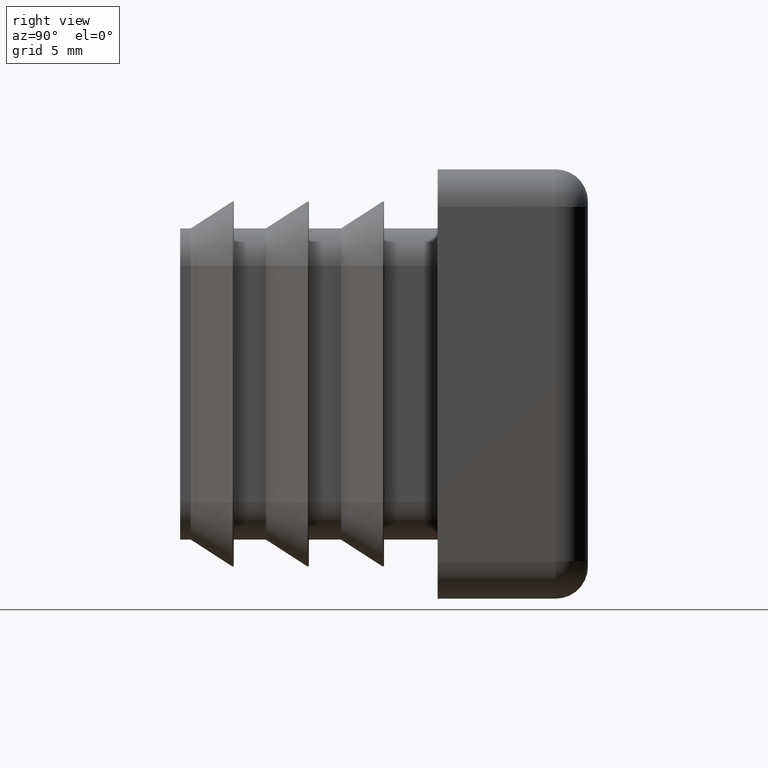
[diagram: clean part render]
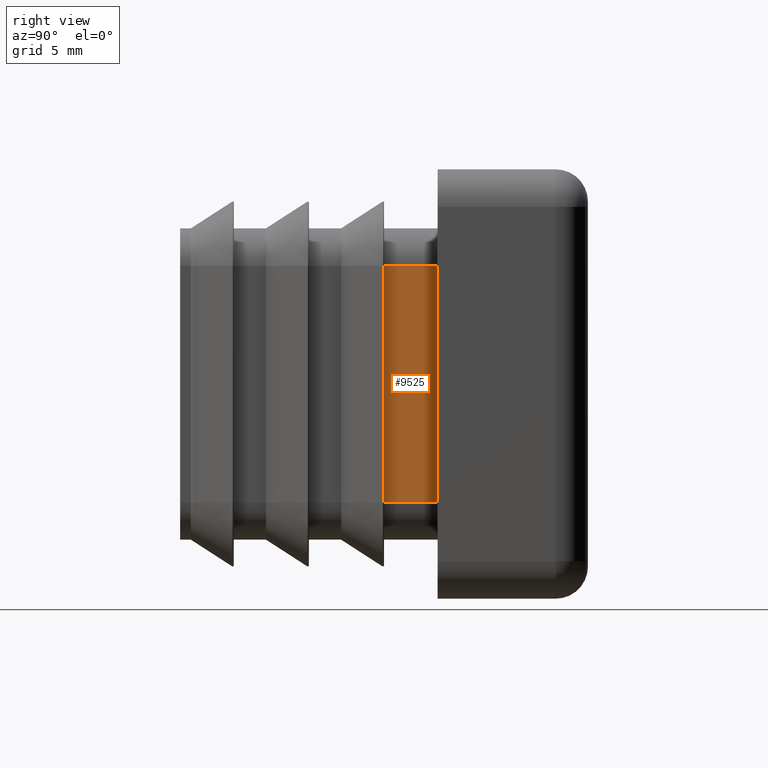
[diagram: same view with one face highlighted and labeled with its STEP entity id]
A machine part, right view. The second image highlights one B-rep face of the part: STEP entity #9525.
In plain terms, the highlighted planar face has unit normal (-1, 0, -0).
Its self-contained STEP definition (entity closure, byte-faithful):
#239 = CARTESIAN_POINT ( 'NONE',  ( 7.249999999999999112, 0.000000000000000000, 7.249999999999994671 ) ) ;
#330 = AXIS2_PLACEMENT_3D ( 'NONE', #5306, #16803, #18375 ) ;
#1162 = CARTESIAN_POINT ( 'NONE',  ( 7.250000000000002665, -2.500000000000000444, 0.000000000000000000 ) ) ;
#2506 = EDGE_CURVE ( 'NONE', #3935, #8171, #9545, .T. ) ;
#3090 = CARTESIAN_POINT ( 'NONE',  ( 7.250000000000000000, -2.500000000000000444, 5.499999999999995559 ) ) ;
#3278 = CARTESIAN_POINT ( 'NONE',  ( 7.250000000000005329, -12.00000000000000000, -5.500000000000003553 ) ) ;
#3858 = CARTESIAN_POINT ( 'NONE',  ( 7.250000000000005329, 0.000000000000000000, -5.500000000000003553 ) ) ;
#3917 = EDGE_LOOP ( 'NONE', ( #14667, #14172, #9308, #5656, #10907 ) ) ;
#3935 = VERTEX_POINT ( 'NONE', #1162 ) ;
#3979 = DIRECTION ( 'NONE',  ( -5.519574696289841831E-16, -0.000000000000000000, 1.000000000000000000 ) ) ;
#4900 = CARTESIAN_POINT ( 'NONE',  ( 7.250000000000000000, 0.000000000000000000, 5.499999999999995559 ) ) ;
#5306 = CARTESIAN_POINT ( 'NONE',  ( 7.249999999999999112, -12.00000000000000000, 7.249999999999994671 ) ) ;
#5343 = VERTEX_POINT ( 'NONE', #3858 ) ;
#5656 = ORIENTED_EDGE ( 'NONE', *, *, #17046, .T. ) ;
#5813 = VERTEX_POINT ( 'NONE', #11626 ) ;
#7058 = DIRECTION ( 'NONE',  ( -5.519574696289841831E-16, -0.000000000000000000, 1.000000000000000000 ) ) ;
#8171 = VERTEX_POINT ( 'NONE', #3090 ) ;
#9308 = ORIENTED_EDGE ( 'NONE', *, *, #18530, .T. ) ;
#9525 = ADVANCED_FACE ( 'NONE', ( #13205 ), #19360, .F. ) ;
#9545 = LINE ( 'NONE', #19670, #17677 ) ;
#9617 = CARTESIAN_POINT ( 'NONE',  ( 7.250000000000000000, -12.00000000000000000, 5.499999999999995559 ) ) ;
#10611 = LINE ( 'NONE', #9617, #14310 ) ;
#10907 = ORIENTED_EDGE ( 'NONE', *, *, #15530, .T. ) ;
#11161 = DIRECTION ( 'NONE',  ( 0.000000000000000000, 1.000000000000000000, 0.000000000000000000 ) ) ;
#11508 = VECTOR ( 'NONE', #11161, 1000.000000000000000 ) ;
#11557 = LINE ( 'NONE', #239, #18988 ) ;
#11626 = CARTESIAN_POINT ( 'NONE',  ( 7.250000000000005329, -2.500000000000000444, -5.500000000000003553 ) ) ;
#13205 = FACE_OUTER_BOUND ( 'NONE', #3917, .T. ) ;
#13464 = VECTOR ( 'NONE', #3979, 1000.000000000000000 ) ;
#13473 = CARTESIAN_POINT ( 'NONE',  ( 7.250000000000002665, -2.500000000000000000, -5.500000000000001776 ) ) ;
#14172 = ORIENTED_EDGE ( 'NONE', *, *, #19679, .F. ) ;
#14310 = VECTOR ( 'NONE', #17674, 1000.000000000000000 ) ;
#14667 = ORIENTED_EDGE ( 'NONE', *, *, #2506, .F. ) ;
#15530 = EDGE_CURVE ( 'NONE', #17822, #8171, #10611, .T. ) ;
#16803 = DIRECTION ( 'NONE',  ( -1.000000000000000000, 0.000000000000000000, -4.785444071660157944E-16 ) ) ;
#17046 = EDGE_CURVE ( 'NONE', #5343, #17822, #11557, .T. ) ;
#17674 = DIRECTION ( 'NONE',  ( -0.000000000000000000, -1.000000000000000000, -0.000000000000000000 ) ) ;
#17677 = VECTOR ( 'NONE', #7058, 1000.000000000000000 ) ;
#17705 = LINE ( 'NONE', #3278, #11508 ) ;
#17822 = VERTEX_POINT ( 'NONE', #4900 ) ;
#18375 = DIRECTION ( 'NONE',  ( -4.785444071660157944E-16, 0.000000000000000000, 1.000000000000000000 ) ) ;
#18530 = EDGE_CURVE ( 'NONE', #5813, #5343, #17705, .T. ) ;
#18988 = VECTOR ( 'NONE', #19183, 1000.000000000000000 ) ;
#19183 = DIRECTION ( 'NONE',  ( -4.785444071660157944E-16, -0.000000000000000000, 1.000000000000000000 ) ) ;
#19360 = PLANE ( 'NONE',  #330 ) ;
#19670 = CARTESIAN_POINT ( 'NONE',  ( 7.249999999999999112, -2.500000000000000000, 0.000000000000000000 ) ) ;
#19679 = EDGE_CURVE ( 'NONE', #5813, #3935, #20149, .T. ) ;
#20149 = LINE ( 'NONE', #13473, #13464 ) ;